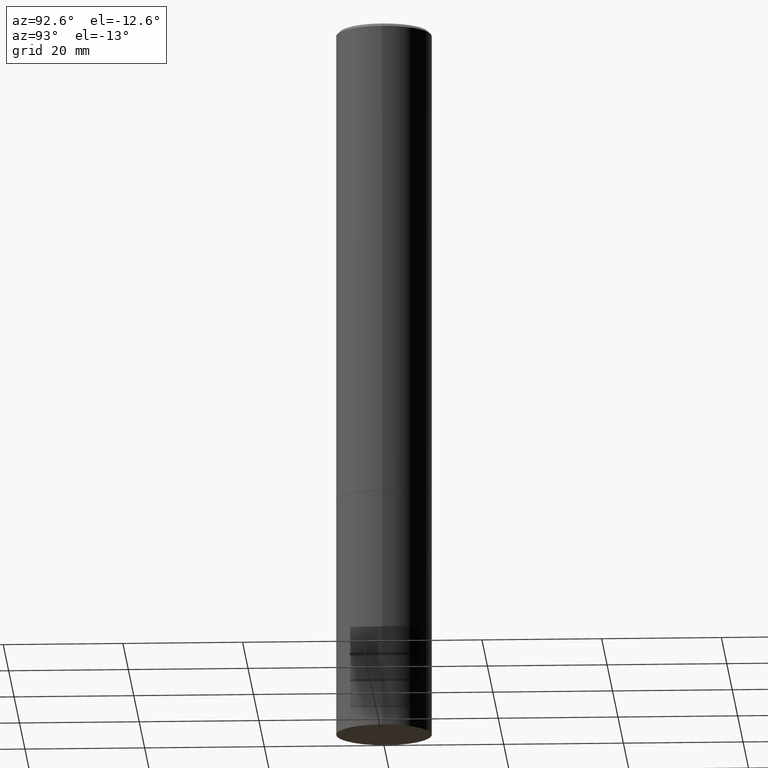
[diagram: clean part render]
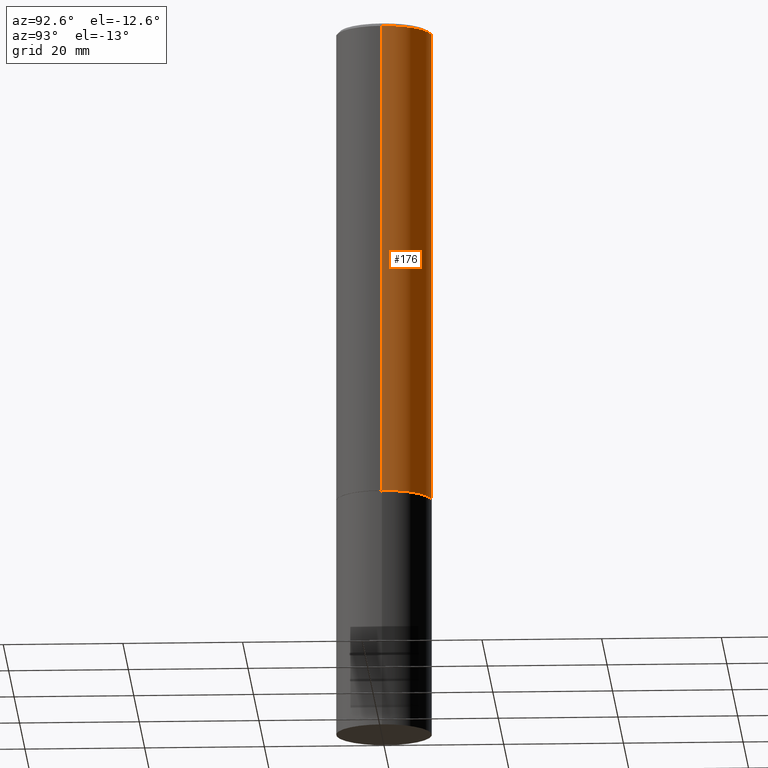
[diagram: same view with one face highlighted and labeled with its STEP entity id]
A machine part, auxiliary view. The second image highlights one B-rep face of the part: STEP entity #176.
In plain terms, the highlighted cylindrical surface (partial cylindrical patch) has radius 7.9997 mm, axis along (-0, 0, 1).
Its self-contained STEP definition (entity closure, byte-faithful):
#18 = ORIENTED_EDGE ( 'NONE', *, *, #277, .T. ) ;
#38 = LINE ( 'NONE', #350, #39 ) ;
#39 = VECTOR ( 'NONE', #202, 39.37007874015748143 ) ;
#56 = DIRECTION ( 'NONE',  ( 1.000000000000000000, -6.982962677686265922E-15, 0.000000000000000000 ) ) ;
#66 = EDGE_CURVE ( 'NONE', #238, #271, #183, .T. ) ;
#75 = EDGE_LOOP ( 'NONE', ( #299, #18, #105, #284 ) ) ;
#79 = CIRCLE ( 'NONE', #98, 0.3149500000000000077 ) ;
#84 = CARTESIAN_POINT ( 'NONE',  ( 0.3149499999999997857, -2.199284095337288293E-15, 1.535751875536929009E-29 ) ) ;
#98 = AXIS2_PLACEMENT_3D ( 'NONE', #197, #110, #165 ) ;
#105 = ORIENTED_EDGE ( 'NONE', *, *, #66, .F. ) ;
#109 = EDGE_CURVE ( 'NONE', #300, #238, #255, .T. ) ;
#110 = DIRECTION ( 'NONE',  ( -2.445468806185136597E-29, 3.491481338843145583E-15, 1.000000000000000000 ) ) ;
#111 = CARTESIAN_POINT ( 'NONE',  ( 0.000000000000000000, 0.000000000000000000, 0.000000000000000000 ) ) ;
#124 = CARTESIAN_POINT ( 'NONE',  ( 0.3149499999999996191, -2.230543471175004294E-15, -0.02000000000000006981 ) ) ;
#129 = VERTEX_POINT ( 'NONE', #247 ) ;
#139 = FACE_OUTER_BOUND ( 'NONE', #75, .T. ) ;
#150 = EDGE_CURVE ( 'NONE', #300, #129, #79, .T. ) ;
#158 = AXIS2_PLACEMENT_3D ( 'NONE', #111, #338, #221 ) ;
#165 = DIRECTION ( 'NONE',  ( 1.000000000000000000, -6.982962677686269866E-15, 0.000000000000000000 ) ) ;
#173 = CARTESIAN_POINT ( 'NONE',  ( 0.3149500000000000077, -1.319256223881881917E-14, -3.148600000000000065 ) ) ;
#176 = ADVANCED_FACE ( 'NONE', ( #139 ), #362, .T. ) ;
#183 = CIRCLE ( 'NONE', #203, 0.3149499999999996191 ) ;
#190 = DIRECTION ( 'NONE',  ( -2.445468806185136877E-29, 3.491481338843145188E-15, 1.000000000000000000 ) ) ;
#192 = VECTOR ( 'NONE', #190, 39.37007874015748143 ) ;
#197 = CARTESIAN_POINT ( 'NONE',  ( 7.699803083154521108E-29, -1.099327814348152772E-14, -3.148600000000000065 ) ) ;
#202 = DIRECTION ( 'NONE',  ( -2.445468806185136877E-29, 3.491481338843145188E-15, 1.000000000000000000 ) ) ;
#203 = AXIS2_PLACEMENT_3D ( 'NONE', #285, #253, #56 ) ;
#221 = DIRECTION ( 'NONE',  ( 1.000000000000000000, -6.982962677686266711E-15, 4.876176775795935793E-29 ) ) ;
#238 = VERTEX_POINT ( 'NONE', #124 ) ;
#247 = CARTESIAN_POINT ( 'NONE',  ( -0.3149500000000000077, -3.293699538852755977E-15, -3.148600000000000065 ) ) ;
#253 = DIRECTION ( 'NONE',  ( -2.445468806185136597E-29, 3.491481338843145583E-15, 1.000000000000000000 ) ) ;
#255 = LINE ( 'NONE', #84, #192 ) ;
#256 = CARTESIAN_POINT ( 'NONE',  ( -0.3149499999999996191, 2.129454468560423812E-15, -0.02000000000000006981 ) ) ;
#271 = VERTEX_POINT ( 'NONE', #256 ) ;
#277 = EDGE_CURVE ( 'NONE', #129, #271, #38, .T. ) ;
#284 = ORIENTED_EDGE ( 'NONE', *, *, #109, .F. ) ;
#285 = CARTESIAN_POINT ( 'NONE',  ( 4.890937612370289799E-31, -6.982962677686315028E-17, -0.02000000000000006981 ) ) ;
#299 = ORIENTED_EDGE ( 'NONE', *, *, #150, .T. ) ;
#300 = VERTEX_POINT ( 'NONE', #173 ) ;
#338 = DIRECTION ( 'NONE',  ( -2.445468806185136597E-29, 3.491481338843145583E-15, 1.000000000000000000 ) ) ;
#350 = CARTESIAN_POINT ( 'NONE',  ( -0.3149499999999997857, 2.237854346276434013E-15, -1.549218606675781555E-29 ) ) ;
#362 = CYLINDRICAL_SURFACE ( 'NONE', #158, 0.3149499999999997857 ) ;